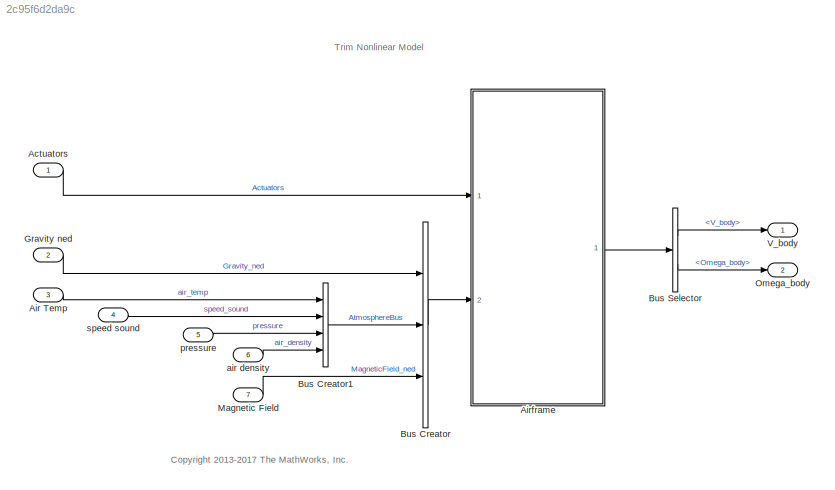
MODEL slx_2c95f6d2da9c
KIND model
CONFIG AbsTol = auto
CONFIG EnableMultiTasking = on
CONFIG FixedStep = Ts
CONFIG MaxStep = auto
CONFIG MinStep = auto
CONFIG RelTol = 1e-3
CONFIG SampleTimeConstraint = Unconstrained
CONFIG Solver = ode3
CONFIG SolverName = ode3
CONFIG StartTime = 0
CONFIG StopTime = 100
BLOCK [Inport] Actuators
  IconDisplay = Port number
  PortDimensions = [1 4]
BLOCK [Inport] Air Temp
  IconDisplay = Port number
  Port = 3
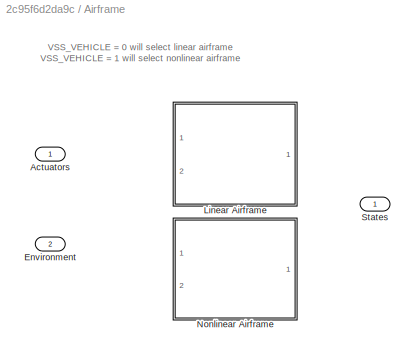
BLOCK [SubSystem] Airframe
  Ports = [2, 1]
  RequestExecContextInheritance = off
  Variant = on
BLOCK [Inport] Airframe/Actuators
  IconDisplay = Port number
BLOCK [Inport] Airframe/Environment
  IconDisplay = Port number
  OutDataTypeStr = Bus: EnvironmentBus
  Port = 2
BLOCK [ModelReference] Airframe/Linear Airframe
  ModelNameDialog = linearAirframe.slx
  ModelReferenceVersion = 1.27
  Ports = [2, 1]
  VariantControl = VSS_VEHICLE_LINEAR
BLOCK [ModelReference] Airframe/Nonlinear Airframe
  ModelNameDialog = nonlinearAirframe.slx
  ModelReferenceVersion = 1.75
  Ports = [2, 1]
  VariantControl = VSS_VEHICLE_NONLINEAR
BLOCK [Outport] Airframe/States
  IconDisplay = Port number
  OutDataTypeStr = Bus: StatesBus
BLOCK [BusCreator] Bus Creator
  DisplayOption = bar
  InheritFromInputs = on
  Inputs = 3
  NonVirtualBus = on
  OutDataTypeStr = Bus: EnvironmentBus
  Ports = [3, 1]
BLOCK [BusCreator] Bus Creator1
  DisplayOption = bar
  InheritFromInputs = on
  Inputs = 4
  NonVirtualBus = on
  OutDataTypeStr = Bus: AtmosphereBus
  Ports = [4, 1]
BLOCK [BusSelector] Bus Selector
  OutputAsBus = off
  OutputSignals = V_body,Omega_body
  Ports = [1, 2]
BLOCK [Inport] Gravity ned
  IconDisplay = Port number
  Port = 2
BLOCK [Inport] Magnetic Field
  IconDisplay = Port number
  Port = 7
BLOCK [Outport] Omega_body
  IconDisplay = Port number
  Port = 2
BLOCK [Outport] V_body
  IconDisplay = Port number
BLOCK [Inport] air density
  IconDisplay = Port number
  Port = 6
BLOCK [Inport] pressure
  IconDisplay = Port number
  Port = 5
BLOCK [Inport] speed sound
  IconDisplay = Port number
  Port = 4
ANNOTATION (root): Trim Nonlinear Model
ANNOTATION (root): <copyright redacted>
ANNOTATION Airframe: VSS_VEHICLE = 0 will select linear airframe VSS_VEHICLE = 1 will select nonlinear airframe
LINE Actuators:1 -> Airframe:1
LINE Air Temp:1 -> Bus Creator1:1
LINE Airframe:1 -> Bus Selector:1
LINE Bus Creator1:1 -> Bus Creator:2
LINE Bus Creator:1 -> Airframe:2
LINE Bus Selector:1 -> V_body:1
LINE Bus Selector:2 -> Omega_body:1
LINE Gravity ned:1 -> Bus Creator:1
LINE Magnetic Field:1 -> Bus Creator:3
LINE air density:1 -> Bus Creator1:4
LINE pressure:1 -> Bus Creator1:3
LINE speed sound:1 -> Bus Creator1:2
